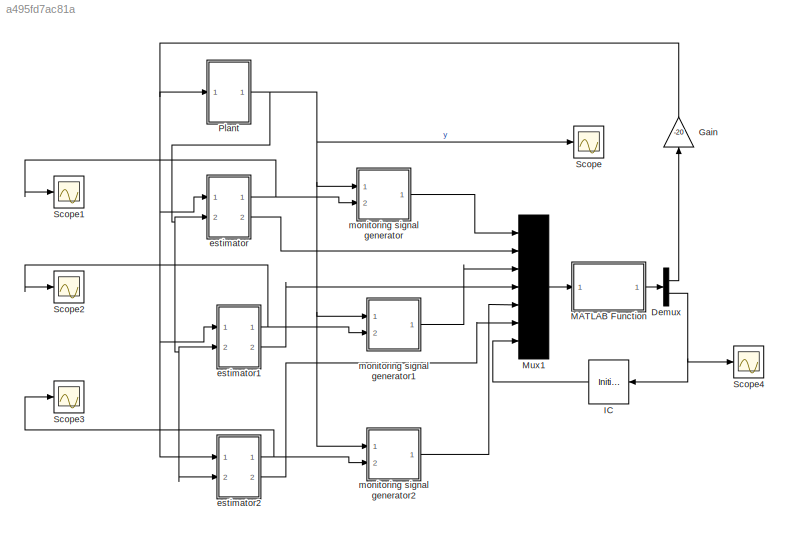
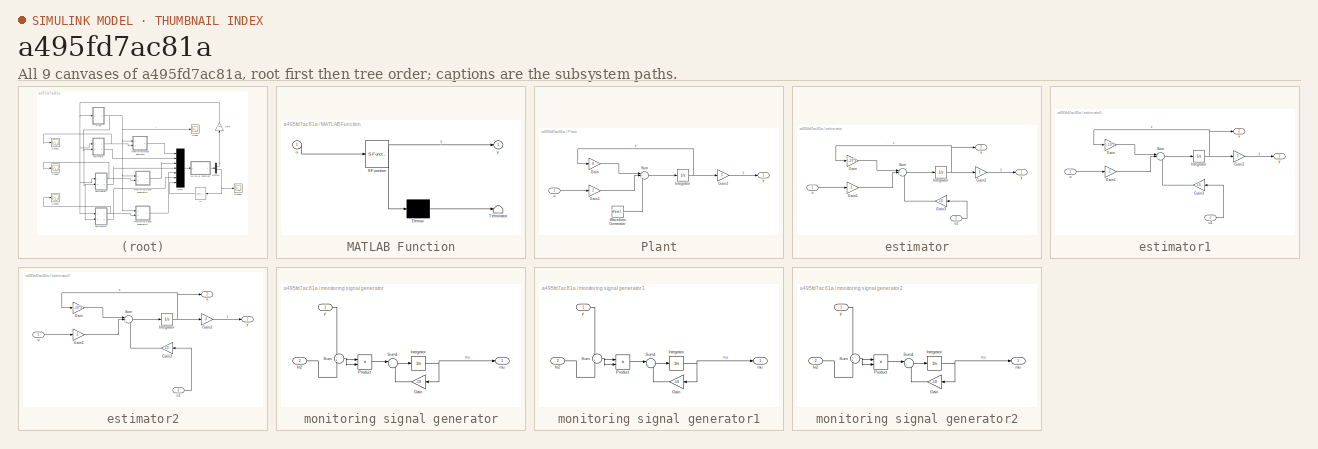
[diagram: thumbnail index - all 9 canvases of the model, root first then tree order]
MODEL slx_a495fd7ac81a
KIND model
CONFIG AbsTol = auto
CONFIG EnableMultiTasking = off
CONFIG FixedStep = auto
CONFIG MaxStep = auto
CONFIG MinStep = auto
CONFIG RelTol = 1e-3
CONFIG SampleTimeConstraint = Unconstrained
CONFIG Solver = VariableStepAuto
CONFIG SolverName = VariableStepAuto
CONFIG StartTime = 0.0
CONFIG StopTime = 10.0
BLOCK [Demux] Demux
  DisplayOption = bar
  Outputs = 2
  Ports = [1, 2]
BLOCK [Gain] Gain
  Gain = -20
  OutDataTypeStr = Inherit: Inherit via internal rule
  ParamDataTypeStr = Inherit: Inherit via internal rule
  SaturateOnIntegerOverflow = off
BLOCK [InitialCondition] IC
  Value = 3
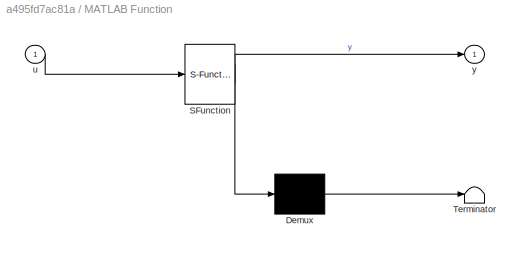
BLOCK [SubSystem] MATLAB Function
  ErrorFcn = Stateflow.Translate.translate
  PermitHierarchicalResolution = ExplicitOnly
  Ports = [1, 1]
  RequestExecContextInheritance = off
  SFBlockType = MATLAB Function
  TreatAsAtomicUnit = on
BLOCK [Demux] MATLAB Function/ Demux 
  Outputs = 1
  Ports = [1, 1]
BLOCK [S-Function] MATLAB Function/ SFunction 
  EnableBusSupport = on
  FunctionName = sf_sfun
  PortCounts = [1 2]
  Ports = [1, 2]
  SFcnIsStateOwnerBlock = off
  SFunctionDeploymentMode = off
  Tag = Stateflow S-Function 2
BLOCK [Terminator] MATLAB Function/ Terminator 
BLOCK [Inport] MATLAB Function/u
  IconDisplay = Port number
BLOCK [Outport] MATLAB Function/y
  IconDisplay = Port number
BLOCK [Mux] Mux1
  DisplayOption = bar
  Inputs = 7
  Ports = [7, 1]
BLOCK [SubSystem] Plant
  Ports = [1, 1]
  RequestExecContextInheritance = off
BLOCK [Gain] Plant/Gain
  OutDataTypeStr = Inherit: Inherit via internal rule
  ParamDataTypeStr = Inherit: Inherit via internal rule
  SaturateOnIntegerOverflow = off
BLOCK [Gain] Plant/Gain1
  Gain = 2
  OutDataTypeStr = Inherit: Inherit via internal rule
  ParamDataTypeStr = Inherit: Inherit via internal rule
  SaturateOnIntegerOverflow = off
BLOCK [Gain] Plant/Gain2
  Gain = 3
  OutDataTypeStr = Inherit: Inherit via internal rule
  ParamDataTypeStr = Inherit: Inherit via internal rule
  SaturateOnIntegerOverflow = off
BLOCK [Integrator] Plant/Integrator
  InitialCondition = 10
  Ports = [1, 1]
BLOCK [Sum] Plant/Sum
  IconShape = round
  InputSameDT = off
  Inputs = |+++
  OutDataTypeStr = Inherit: Inherit via internal rule
  Ports = [3, 1]
  SaturateOnIntegerOverflow = off
BLOCK [Reference] Plant/Waveform Generator  REF=simulink/Sources/Waveform
Generator
  Ports = [0, 1]
  SourceBlock = simulink/Sources/Waveform\nGenerator
  SourceProductBaseCode = SL
  SourceProductName = Simulink
  SourceType = WaveformGenerator
BLOCK [Inport] Plant/u
  IconDisplay = Port number
BLOCK [Outport] Plant/y
  IconDisplay = Port number
BLOCK [Scope] Scope
  Floating = off
  NumInputPorts = 1
  Ports = [1]
  ScopeSpecificationString = Simulink.scopes.TimeScopeBlockCfg('CurrentConfiguration', extmgr.ConfigurationSet(extmgr.Configuration('Core','General UI',true),extmgr.Configuration('Core','Source UI',true),extmgr.Configuration('Sources','WiredSimulink',true),extmgr.Configuration('Visuals','Time Domain',true,'SerializedDisplays',{struct('MinYLimReal','-10.49212','MaxYLimReal','34.51783','YLabelReal','','MinYLimMag','0.00000','Ma...<+1327ch>
BLOCK [Scope] Scope1
  Floating = off
  NumInputPorts = 1
  Ports = [1]
  ScopeSpecificationString = Simulink.scopes.TimeScopeBlockCfg('CurrentConfiguration', extmgr.ConfigurationSet(extmgr.Configuration('Core','General UI',true),extmgr.Configuration('Core','Source UI',true),extmgr.Configuration('Sources','WiredSimulink',true,'DataLoggingVariableName','ScopeData1'),extmgr.Configuration('Visuals','Time Domain',true,'SerializedDisplays',{struct('MinYLimReal','-2.3015','MaxYLimReal','7.76869','YLabe...<+1368ch>
BLOCK [Scope] Scope2
  Floating = off
  NumInputPorts = 1
  Ports = [1]
  ScopeSpecificationString = Simulink.scopes.TimeScopeBlockCfg('CurrentConfiguration', extmgr.ConfigurationSet(extmgr.Configuration('Core','General UI',true),extmgr.Configuration('Core','Source UI',true),extmgr.Configuration('Sources','WiredSimulink',true,'DataLoggingVariableName','ScopeData2'),extmgr.Configuration('Visuals','Time Domain',true,'SerializedDisplays',{struct('MinYLimReal','-3.58287','MaxYLimReal','32.24579','YLa...<+1375ch>
BLOCK [Scope] Scope3
  Floating = off
  NumInputPorts = 1
  Ports = [1]
  ScopeSpecificationString = Simulink.scopes.TimeScopeBlockCfg('CurrentConfiguration', extmgr.ConfigurationSet(extmgr.Configuration('Core','General UI',true),extmgr.Configuration('Core','Source UI',true),extmgr.Configuration('Sources','WiredSimulink',true,'DataLoggingVariableName','ScopeData3'),extmgr.Configuration('Visuals','Time Domain',true,'SerializedDisplays',{struct('MinYLimReal','-33.10995','MaxYLimReal','3.67888','YLa...<+1375ch>
BLOCK [Scope] Scope4
  Floating = off
  NumInputPorts = 1
  Ports = [1]
  ScopeSpecificationString = Simulink.scopes.TimeScopeBlockCfg('CurrentConfiguration', extmgr.ConfigurationSet(extmgr.Configuration('Core','General UI',true),extmgr.Configuration('Core','Source UI',true),extmgr.Configuration('Sources','WiredSimulink',true,'DataLoggingVariableName','ScopeData4'),extmgr.Configuration('Visuals','Time Domain',true,'SerializedDisplays',{struct('MinYLimReal','0.75','MaxYLimReal','3.25','YLabelReal'...<+1340ch>
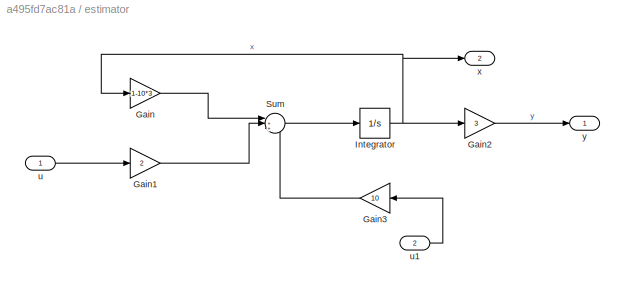
BLOCK [SubSystem] estimator
  Ports = [2, 2]
  RequestExecContextInheritance = off
BLOCK [Gain] estimator/Gain
  Gain = 1-10*3
  OutDataTypeStr = Inherit: Inherit via internal rule
  ParamDataTypeStr = Inherit: Inherit via internal rule
  SaturateOnIntegerOverflow = off
BLOCK [Gain] estimator/Gain1
  Gain = 2
  OutDataTypeStr = Inherit: Inherit via internal rule
  ParamDataTypeStr = Inherit: Inherit via internal rule
  SaturateOnIntegerOverflow = off
BLOCK [Gain] estimator/Gain2
  Gain = 3
  OutDataTypeStr = Inherit: Inherit via internal rule
  ParamDataTypeStr = Inherit: Inherit via internal rule
  SaturateOnIntegerOverflow = off
BLOCK [Gain] estimator/Gain3
  Gain = 10
  OutDataTypeStr = Inherit: Inherit via internal rule
  ParamDataTypeStr = Inherit: Inherit via internal rule
  SaturateOnIntegerOverflow = off
BLOCK [Integrator] estimator/Integrator
  Ports = [1, 1]
BLOCK [Sum] estimator/Sum
  IconShape = round
  InputSameDT = off
  Inputs = |+++
  OutDataTypeStr = Inherit: Inherit via internal rule
  Ports = [3, 1]
  SaturateOnIntegerOverflow = off
BLOCK [Inport] estimator/u
  IconDisplay = Port number
BLOCK [Inport] estimator/u1
  IconDisplay = Port number
  Port = 2
BLOCK [Outport] estimator/x
  IconDisplay = Port number
  Port = 2
BLOCK [Outport] estimator/y
  IconDisplay = Port number
BLOCK [SubSystem] estimator1
  Ports = [2, 2]
  RequestExecContextInheritance = off
BLOCK [Gain] estimator1/Gain
  Gain = -1-10*3
  OutDataTypeStr = Inherit: Inherit via internal rule
  ParamDataTypeStr = Inherit: Inherit via internal rule
  SaturateOnIntegerOverflow = off
BLOCK [Gain] estimator1/Gain1
  Gain = -2
  OutDataTypeStr = Inherit: Inherit via internal rule
  ParamDataTypeStr = Inherit: Inherit via internal rule
  SaturateOnIntegerOverflow = off
BLOCK [Gain] estimator1/Gain2
  Gain = 3
  OutDataTypeStr = Inherit: Inherit via internal rule
  ParamDataTypeStr = Inherit: Inherit via internal rule
  SaturateOnIntegerOverflow = off
BLOCK [Gain] estimator1/Gain3
  Gain = 10
  OutDataTypeStr = Inherit: Inherit via internal rule
  ParamDataTypeStr = Inherit: Inherit via internal rule
  SaturateOnIntegerOverflow = off
BLOCK [Integrator] estimator1/Integrator
  Ports = [1, 1]
BLOCK [Sum] estimator1/Sum
  IconShape = round
  InputSameDT = off
  Inputs = |+++
  OutDataTypeStr = Inherit: Inherit via internal rule
  Ports = [3, 1]
  SaturateOnIntegerOverflow = off
BLOCK [Inport] estimator1/u
  IconDisplay = Port number
BLOCK [Inport] estimator1/u1
  IconDisplay = Port number
  Port = 2
BLOCK [Outport] estimator1/x
  IconDisplay = Port number
  Port = 2
BLOCK [Outport] estimator1/y
  IconDisplay = Port number
BLOCK [SubSystem] estimator2
  Ports = [2, 2]
  RequestExecContextInheritance = off
BLOCK [Gain] estimator2/Gain
  Gain = 1-10*3
  OutDataTypeStr = Inherit: Inherit via internal rule
  ParamDataTypeStr = Inherit: Inherit via internal rule
  SaturateOnIntegerOverflow = off
BLOCK [Gain] estimator2/Gain1
  Gain = -2
  OutDataTypeStr = Inherit: Inherit via internal rule
  ParamDataTypeStr = Inherit: Inherit via internal rule
  SaturateOnIntegerOverflow = off
BLOCK [Gain] estimator2/Gain2
  Gain = -3
  OutDataTypeStr = Inherit: Inherit via internal rule
  ParamDataTypeStr = Inherit: Inherit via internal rule
  SaturateOnIntegerOverflow = off
BLOCK [Gain] estimator2/Gain3
  Gain = 10
  OutDataTypeStr = Inherit: Inherit via internal rule
  ParamDataTypeStr = Inherit: Inherit via internal rule
  SaturateOnIntegerOverflow = off
BLOCK [Integrator] estimator2/Integrator
  Ports = [1, 1]
BLOCK [Sum] estimator2/Sum
  IconShape = round
  InputSameDT = off
  Inputs = |+++
  OutDataTypeStr = Inherit: Inherit via internal rule
  Ports = [3, 1]
  SaturateOnIntegerOverflow = off
BLOCK [Inport] estimator2/u
  IconDisplay = Port number
BLOCK [Inport] estimator2/u1
  IconDisplay = Port number
  Port = 2
BLOCK [Outport] estimator2/x
  IconDisplay = Port number
  Port = 2
BLOCK [Outport] estimator2/y
  IconDisplay = Port number
BLOCK [SubSystem] monitoring signal generator
  Ports = [2, 1]
  RequestExecContextInheritance = off
BLOCK [Gain] monitoring signal generator/Gain
  Gain = -10
  OutDataTypeStr = Inherit: Inherit via internal rule
  ParamDataTypeStr = Inherit: Inherit via internal rule
  SaturateOnIntegerOverflow = off
BLOCK [Inport] monitoring signal generator/In2
  IconDisplay = Port number
  Port = 2
BLOCK [Integrator] monitoring signal generator/Integrator
  Ports = [1, 1]
BLOCK [Product] monitoring signal generator/Product
  InputSameDT = off
  OutDataTypeStr = Inherit: Inherit via internal rule
  Ports = [2, 1]
  RndMeth = Floor
  SaturateOnIntegerOverflow = off
BLOCK [Sum] monitoring signal generator/Sum
  IconShape = round
  InputSameDT = off
  Inputs = -+
  OutDataTypeStr = Inherit: Inherit via internal rule
  Ports = [2, 1]
  SaturateOnIntegerOverflow = off
BLOCK [Sum] monitoring signal generator/Sum1
  IconShape = round
  InputSameDT = off
  Inputs = |++
  OutDataTypeStr = Inherit: Inherit via internal rule
  Ports = [2, 1]
  SaturateOnIntegerOverflow = off
BLOCK [Outport] monitoring signal generator/mu
  IconDisplay = Port number
BLOCK [Inport] monitoring signal generator/y
  IconDisplay = Port number
BLOCK [SubSystem] monitoring signal generator1
  Ports = [2, 1]
  RequestExecContextInheritance = off
BLOCK [Gain] monitoring signal generator1/Gain
  Gain = -10
  OutDataTypeStr = Inherit: Inherit via internal rule
  ParamDataTypeStr = Inherit: Inherit via internal rule
  SaturateOnIntegerOverflow = off
BLOCK [Inport] monitoring signal generator1/In2
  IconDisplay = Port number
  Port = 2
BLOCK [Integrator] monitoring signal generator1/Integrator
  Ports = [1, 1]
BLOCK [Product] monitoring signal generator1/Product
  InputSameDT = off
  OutDataTypeStr = Inherit: Inherit via internal rule
  Ports = [2, 1]
  RndMeth = Floor
  SaturateOnIntegerOverflow = off
BLOCK [Sum] monitoring signal generator1/Sum
  IconShape = round
  InputSameDT = off
  Inputs = -+
  OutDataTypeStr = Inherit: Inherit via internal rule
  Ports = [2, 1]
  SaturateOnIntegerOverflow = off
BLOCK [Sum] monitoring signal generator1/Sum1
  IconShape = round
  InputSameDT = off
  Inputs = |++
  OutDataTypeStr = Inherit: Inherit via internal rule
  Ports = [2, 1]
  SaturateOnIntegerOverflow = off
BLOCK [Outport] monitoring signal generator1/mu
  IconDisplay = Port number
BLOCK [Inport] monitoring signal generator1/y
  IconDisplay = Port number
BLOCK [SubSystem] monitoring signal generator2
  Ports = [2, 1]
  RequestExecContextInheritance = off
BLOCK [Gain] monitoring signal generator2/Gain
  Gain = -10
  OutDataTypeStr = Inherit: Inherit via internal rule
  ParamDataTypeStr = Inherit: Inherit via internal rule
  SaturateOnIntegerOverflow = off
BLOCK [Inport] monitoring signal generator2/In2
  IconDisplay = Port number
  Port = 2
BLOCK [Integrator] monitoring signal generator2/Integrator
  Ports = [1, 1]
BLOCK [Product] monitoring signal generator2/Product
  InputSameDT = off
  OutDataTypeStr = Inherit: Inherit via internal rule
  Ports = [2, 1]
  RndMeth = Floor
  SaturateOnIntegerOverflow = off
BLOCK [Sum] monitoring signal generator2/Sum
  IconShape = round
  InputSameDT = off
  Inputs = -+
  OutDataTypeStr = Inherit: Inherit via internal rule
  Ports = [2, 1]
  SaturateOnIntegerOverflow = off
BLOCK [Sum] monitoring signal generator2/Sum1
  IconShape = round
  InputSameDT = off
  Inputs = |++
  OutDataTypeStr = Inherit: Inherit via internal rule
  Ports = [2, 1]
  SaturateOnIntegerOverflow = off
BLOCK [Outport] monitoring signal generator2/mu
  IconDisplay = Port number
BLOCK [Inport] monitoring signal generator2/y
  IconDisplay = Port number
LINE Demux:1 -> Gain:1
NET Demux:2 -> IC:1, Scope4:1
NET Gain:1 -> Plant:1, estimator1:1, estimator2:1, estimator:1
LINE IC:1 -> Mux1:7
LINE MATLAB Function:1 -> Demux:1
LINE Mux1:1 -> MATLAB Function:1
LINE Plant/Gain1:1 -> Plant/Sum:2
LINE Plant/Gain2:1 -> Plant/y:1
LINE Plant/Gain:1 -> Plant/Sum:1
NET Plant/Integrator:1 -> Plant/Gain2:1, Plant/Gain:1
LINE Plant/Sum:1 -> Plant/Integrator:1
LINE Plant/Waveform Generator:1 -> Plant/Sum:3
LINE Plant/u:1 -> Plant/Gain1:1
NET Plant:1 -> Scope:1, estimator1:2, estimator2:2, estimator:2, monitoring signal generator1:1, monitoring signal generator2:1, monitoring signal generator:1
LINE estimator/Gain1:1 -> estimator/Sum:2
LINE estimator/Gain2:1 -> estimator/y:1
LINE estimator/Gain3:1 -> estimator/Sum:3
LINE estimator/Gain:1 -> estimator/Sum:1
NET estimator/Integrator:1 -> estimator/Gain2:1, estimator/Gain:1, estimator/x:1
LINE estimator/Sum:1 -> estimator/Integrator:1
LINE estimator/u1:1 -> estimator/Gain3:1
LINE estimator/u:1 -> estimator/Gain1:1
LINE estimator1/Gain1:1 -> estimator1/Sum:2
LINE estimator1/Gain2:1 -> estimator1/y:1
LINE estimator1/Gain3:1 -> estimator1/Sum:3
LINE estimator1/Gain:1 -> estimator1/Sum:1
NET estimator1/Integrator:1 -> estimator1/Gain2:1, estimator1/Gain:1, estimator1/x:1
LINE estimator1/Sum:1 -> estimator1/Integrator:1
LINE estimator1/u1:1 -> estimator1/Gain3:1
LINE estimator1/u:1 -> estimator1/Gain1:1
NET estimator1:1 -> Scope2:1, monitoring signal generator1:2
LINE estimator1:2 -> Mux1:4
LINE estimator2/Gain1:1 -> estimator2/Sum:2
LINE estimator2/Gain2:1 -> estimator2/y:1
LINE estimator2/Gain3:1 -> estimator2/Sum:3
LINE estimator2/Gain:1 -> estimator2/Sum:1
NET estimator2/Integrator:1 -> estimator2/Gain2:1, estimator2/Gain:1, estimator2/x:1
LINE estimator2/Sum:1 -> estimator2/Integrator:1
LINE estimator2/u1:1 -> estimator2/Gain3:1
LINE estimator2/u:1 -> estimator2/Gain1:1
NET estimator2:1 -> Scope3:1, monitoring signal generator2:2
LINE estimator2:2 -> Mux1:6
NET estimator:1 -> Scope1:1, monitoring signal generator:2
LINE estimator:2 -> Mux1:2
LINE monitoring signal generator/Gain:1 -> monitoring signal generator/Sum1:2
LINE monitoring signal generator/In2:1 -> monitoring signal generator/Sum:2
NET monitoring signal generator/Integrator:1 -> monitoring signal generator/Gain:1, monitoring signal generator/mu:1
LINE monitoring signal generator/Product:1 -> monitoring signal generator/Sum1:1
LINE monitoring signal generator/Sum1:1 -> monitoring signal generator/Integrator:1
NET monitoring signal generator/Sum:1 -> monitoring signal generator/Product:1, monitoring signal generator/Product:2
LINE monitoring signal generator/y:1 -> monitoring signal generator/Sum:1
LINE monitoring signal generator1/Gain:1 -> monitoring signal generator1/Sum1:2
LINE monitoring signal generator1/In2:1 -> monitoring signal generator1/Sum:2
NET monitoring signal generator1/Integrator:1 -> monitoring signal generator1/Gain:1, monitoring signal generator1/mu:1
LINE monitoring signal generator1/Product:1 -> monitoring signal generator1/Sum1:1
LINE monitoring signal generator1/Sum1:1 -> monitoring signal generator1/Integrator:1
NET monitoring signal generator1/Sum:1 -> monitoring signal generator1/Product:1, monitoring signal generator1/Product:2
LINE monitoring signal generator1/y:1 -> monitoring signal generator1/Sum:1
LINE monitoring signal generator1:1 -> Mux1:3
LINE monitoring signal generator2/Gain:1 -> monitoring signal generator2/Sum1:2
LINE monitoring signal generator2/In2:1 -> monitoring signal generator2/Sum:2
NET monitoring signal generator2/Integrator:1 -> monitoring signal generator2/Gain:1, monitoring signal generator2/mu:1
LINE monitoring signal generator2/Product:1 -> monitoring signal generator2/Sum1:1
LINE monitoring signal generator2/Sum1:1 -> monitoring signal generator2/Integrator:1
NET monitoring signal generator2/Sum:1 -> monitoring signal generator2/Product:1, monitoring signal generator2/Product:2
LINE monitoring signal generator2/y:1 -> monitoring signal generator2/Sum:1
LINE monitoring signal generator2:1 -> Mux1:5
LINE monitoring signal generator:1 -> Mux1:1
note: NET lines group one-source signal fan-out (src -> all destinations, sorted); 1:1 wires keep LINE
CHART MATLAB Function states=1 transitions=1
  STATE_LABEL 'eML_blk_kernel()'
  STATE_LABEL 'SCRIPT:\nfunction y = fcn(u)\n   [l,m]=min([u(1);u(3);u(5)]);\n   h=10;\n   if l+h<u(int64(2*u(7)-1))\n       y=[u(2*m);m];\n   else\n       y=[u(2*u(7));u(7)];\n   end\nend\n'
